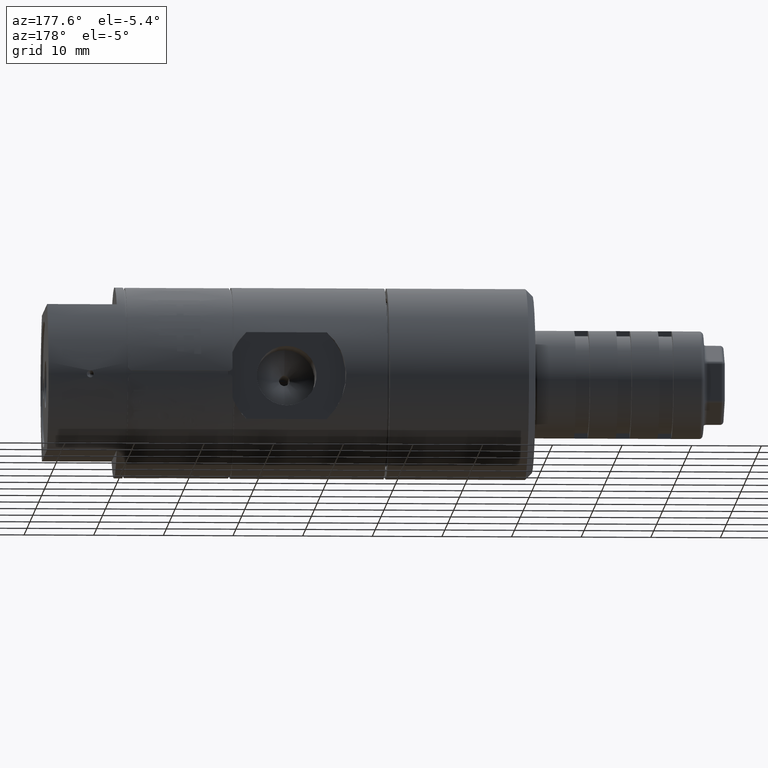
[diagram: clean part render]
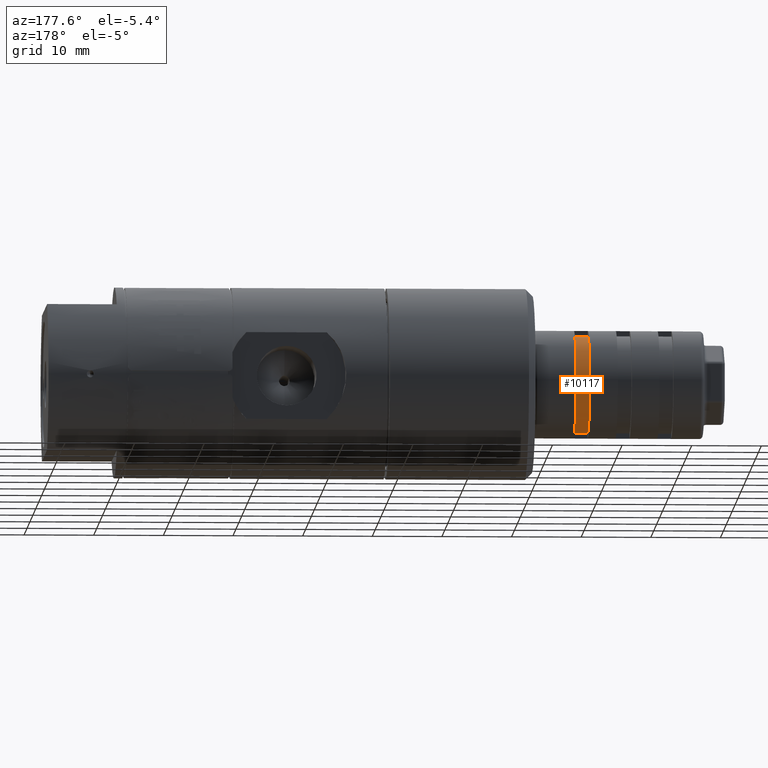
[diagram: same view with one face highlighted and labeled with its STEP entity id]
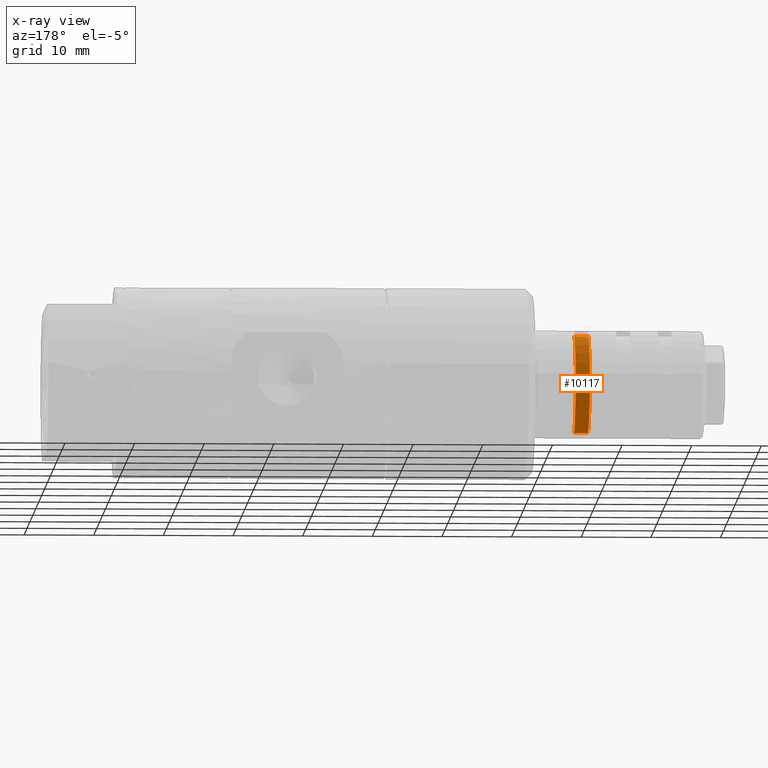
[diagram: x-ray of the same camera — body ghosted, the highlighted face saturated]
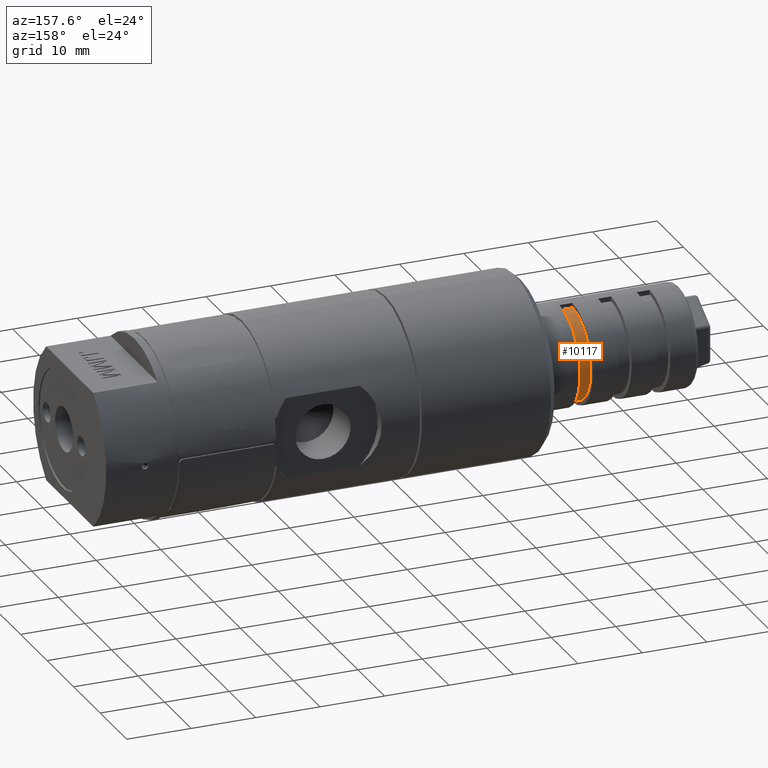
[diagram: same view with one face highlighted and labeled with its STEP entity id]
A machine part, auxiliary view. The second image highlights one B-rep face of the part: STEP entity #10117.
The next image is the same camera in x-ray: the body ghosted, the highlighted face saturated — about 0% of this face is hidden behind the body in this view.
A second angle (auxiliary view) of the same face is appended — the face is thin or edge-on in the first view.
In plain terms, the highlighted cylindrical surface (partial cylindrical patch) has radius 7 mm, axis along (-1, 0, -0).
Its self-contained STEP definition (entity closure, byte-faithful):
#1800 = CARTESIAN_POINT ( 'NONE',  ( -76.00000000000000000, -3.783160786527999500E-015, -2.068999962571129800E-014 ) ) ;
#2170 = EDGE_CURVE ( 'NONE', #21162, #13040, #17188, .T. ) ;
#2271 = AXIS2_PLACEMENT_3D ( 'NONE', #8002, #19518, #19438 ) ;
#2288 = ORIENTED_EDGE ( 'NONE', *, *, #2170, .T. ) ;
#2310 = VECTOR ( 'NONE', #15744, 1000.000000000000000 ) ;
#2597 = AXIS2_PLACEMENT_3D ( 'NONE', #16447, #6541, #8243 ) ;
#4628 = EDGE_CURVE ( 'NONE', #21162, #8664, #17125, .T. ) ;
#6047 = CARTESIAN_POINT ( 'NONE',  ( -76.00000000000000000, 8.151736728192440400E-015, -7.000000000000000000 ) ) ;
#6541 = DIRECTION ( 'NONE',  ( 1.000000000000000000, -5.228563909572969700E-017, 2.111368100172860100E-017 ) ) ;
#8002 = CARTESIAN_POINT ( 'NONE',  ( -76.00000000000000000, -3.783160786527999500E-015, -2.068999962571129800E-014 ) ) ;
#8243 = DIRECTION ( 'NONE',  ( 0.0000000000000000000, -2.081668171172159300E-017, 1.000000000000000000 ) ) ;
#8335 = ORIENTED_EDGE ( 'NONE', *, *, #13458, .F. ) ;
#8484 = EDGE_CURVE ( 'NONE', #13040, #16321, #11456, .T. ) ;
#8664 = VERTEX_POINT ( 'NONE', #16932 ) ;
#10117 = ADVANCED_FACE ( 'NONE', ( #11463 ), #12474, .T. ) ;
#10272 = DIRECTION ( 'NONE',  ( -1.000000000000000000, 5.228563909572969700E-017, -2.111368100172860100E-017 ) ) ;
#10339 = CARTESIAN_POINT ( 'NONE',  ( -76.00000000000000000, 5.098623410473249700E-015, 7.000000000000000000 ) ) ;
#11423 = ORIENTED_EDGE ( 'NONE', *, *, #8484, .T. ) ;
#11456 = CIRCLE ( 'NONE', #2597, 7.000000000000000000 ) ;
#11463 = FACE_OUTER_BOUND ( 'NONE', #15553, .T. ) ;
#12125 = VECTOR ( 'NONE', #10272, 1000.000000000000000 ) ;
#12474 = CYLINDRICAL_SURFACE ( 'NONE', #14183, 7.000000000000000000 ) ;
#12646 = CARTESIAN_POINT ( 'NONE',  ( -78.00000000000000000, -1.840270493433975200E-015, 7.000000000000000000 ) ) ;
#13040 = VERTEX_POINT ( 'NONE', #15101 ) ;
#13458 = EDGE_CURVE ( 'NONE', #8664, #16321, #15757, .T. ) ;
#14183 = AXIS2_PLACEMENT_3D ( 'NONE', #1800, #18180, #19818 ) ;
#15101 = CARTESIAN_POINT ( 'NONE',  ( -78.00000000000000000, 1.509063063209964800E-014, -7.000000000000000000 ) ) ;
#15553 = EDGE_LOOP ( 'NONE', ( #11423, #8335, #17210, #2288 ) ) ;
#15744 = DIRECTION ( 'NONE',  ( -1.000000000000000000, 5.228563909572969700E-017, -2.111368100172860100E-017 ) ) ;
#15757 = LINE ( 'NONE', #10339, #12125 ) ;
#16321 = VERTEX_POINT ( 'NONE', #12646 ) ;
#16447 = CARTESIAN_POINT ( 'NONE',  ( -78.00000000000000000, -3.783160786527994800E-015, -6.812211817896859700E-015 ) ) ;
#16477 = CARTESIAN_POINT ( 'NONE',  ( -76.00000000000000000, 8.151736728192440400E-015, -7.000000000000000000 ) ) ;
#16932 = CARTESIAN_POINT ( 'NONE',  ( -76.00000000000000000, 5.098623410473249700E-015, 7.000000000000000000 ) ) ;
#17125 = CIRCLE ( 'NONE', #2271, 7.000000000000000000 ) ;
#17188 = LINE ( 'NONE', #6047, #2310 ) ;
#17210 = ORIENTED_EDGE ( 'NONE', *, *, #4628, .F. ) ;
#18180 = DIRECTION ( 'NONE',  ( -1.000000000000000000, 5.228563909572969700E-017, -2.111368100172860100E-017 ) ) ;
#19438 = DIRECTION ( 'NONE',  ( 0.0000000000000000000, -2.081668171172159300E-017, 1.000000000000000000 ) ) ;
#19518 = DIRECTION ( 'NONE',  ( 1.000000000000000000, -5.228563909572969700E-017, 2.111368100172860100E-017 ) ) ;
#19818 = DIRECTION ( 'NONE',  ( 0.0000000000000000000, -2.081668171172159300E-017, 1.000000000000000000 ) ) ;
#21162 = VERTEX_POINT ( 'NONE', #16477 ) ;